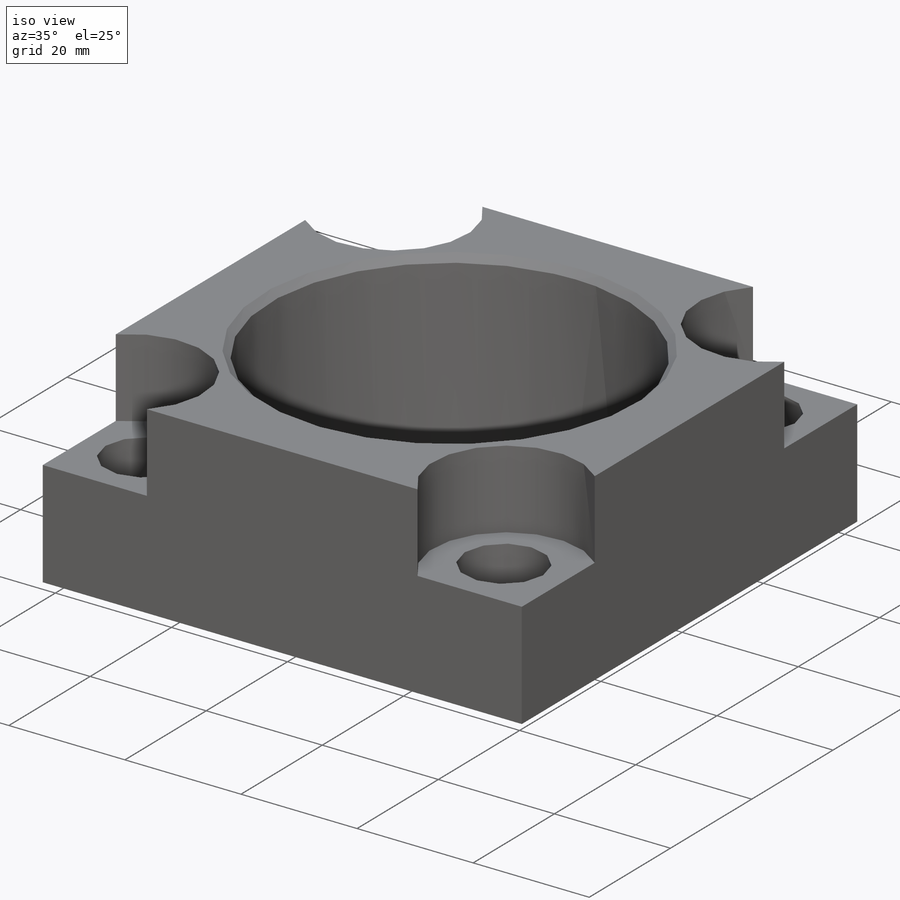
[diagram: iso view]
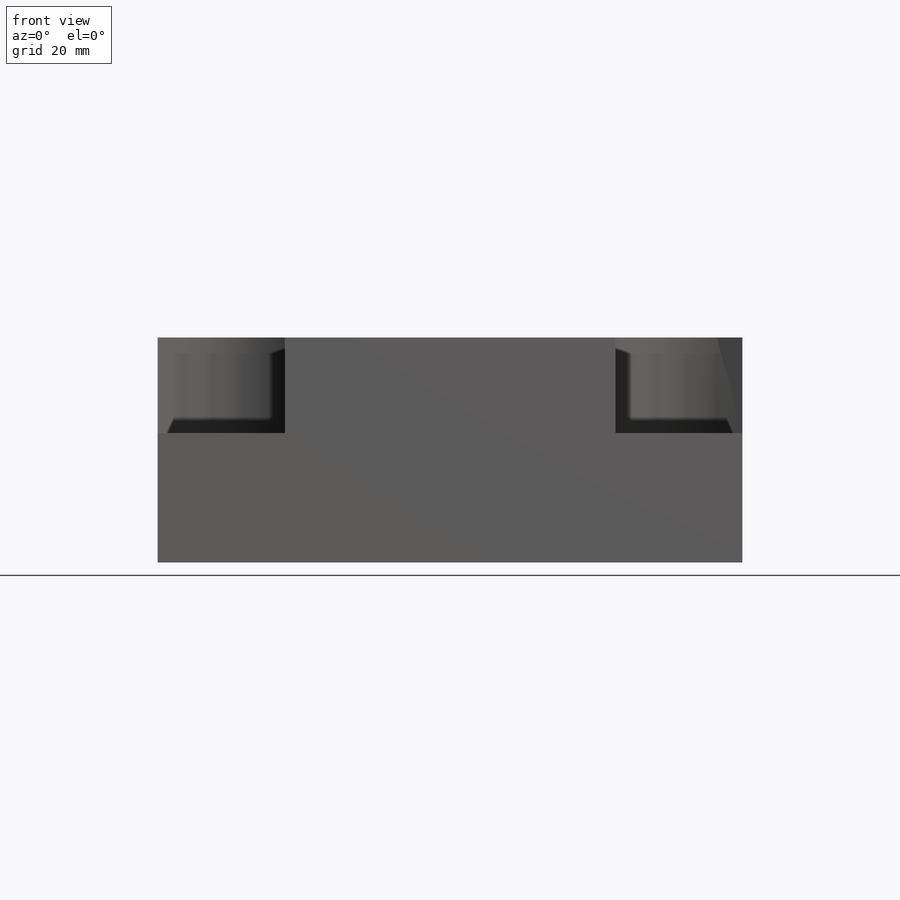
[diagram: front view]
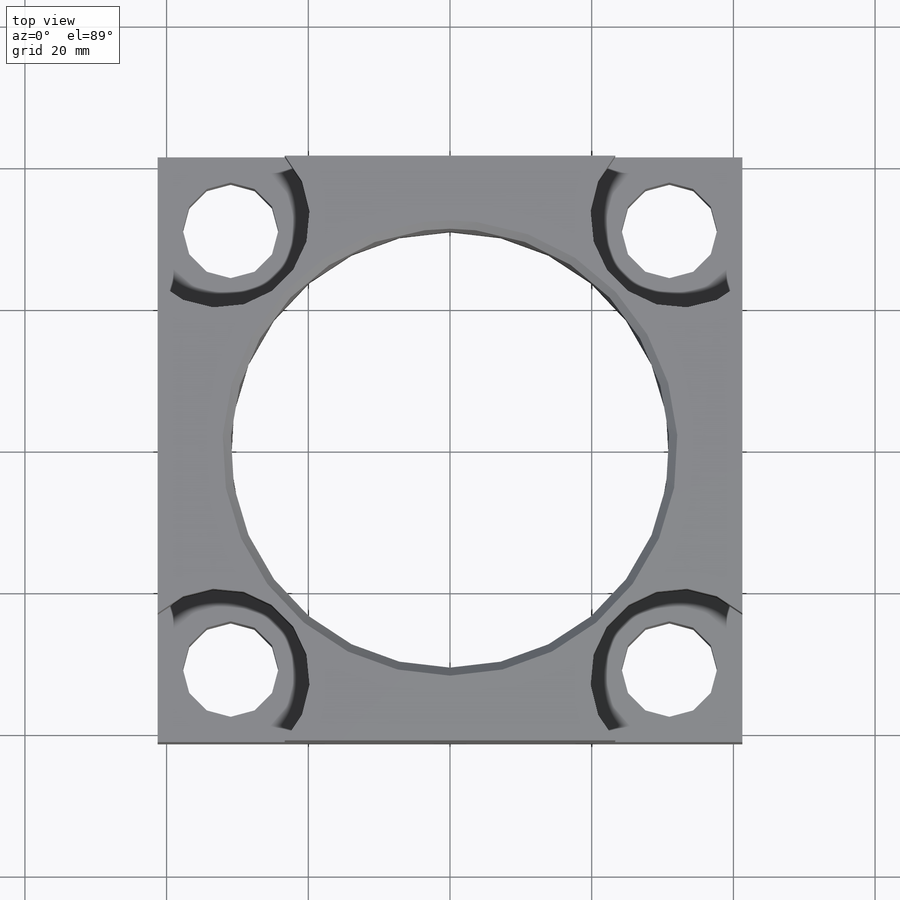
[diagram: top view]
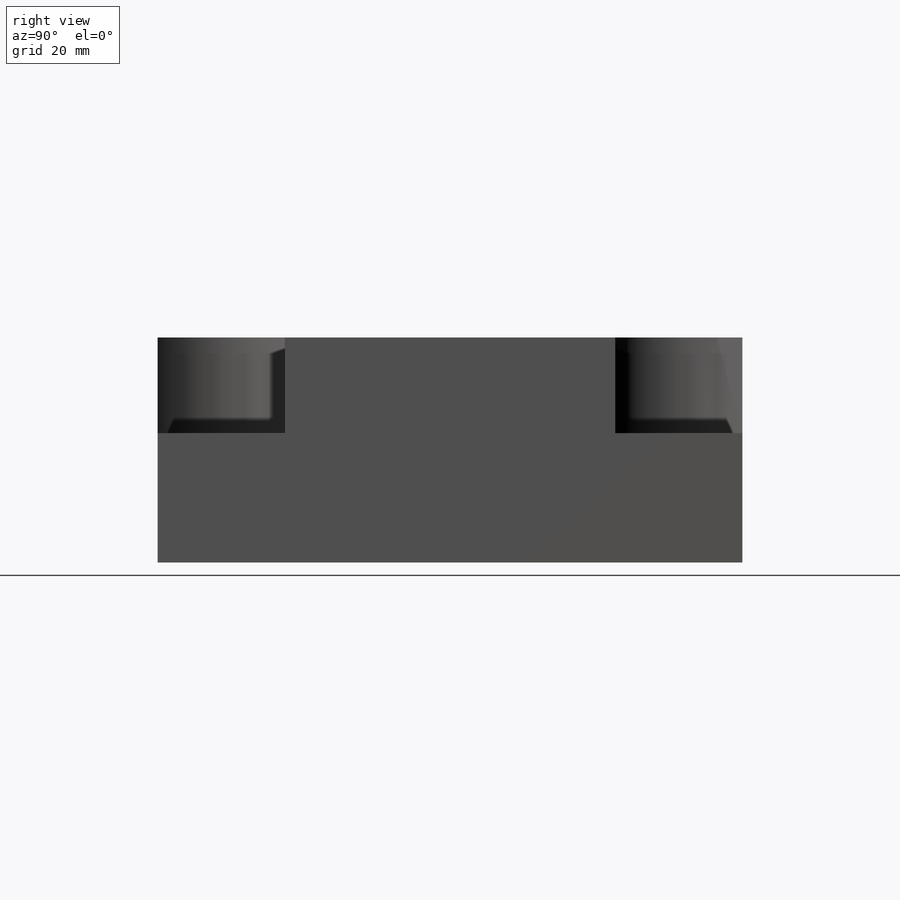
[diagram: right view]
SOLIDWORKS PART (.sldprt)
format: sldprt  version: not decoded by parser v0  size: 211,968 bytes
history: native  units: mm
features: sketch x5, material x1, extrude x1, cut_extrude x1, hole x1, cut_revolve x1 (+13 scaffold rows collapsed)
feature tree (23):
  scaffold x13  (default folders/planes/origin — collapsed)
  material  "Alloy Steel"
  sketch  "Sketch1"  dims[D3=61.9506mm D1=82.55mm D2=82.55mm]
  extrude  "Extrude1"  Depth=31.75mm
  sketch  "Sketch2"  dims[D1=12.7mm D2=32.512mm D3=32.512mm]
  cut_extrude  "Cut-Extrude1"  Depth=13.4874mm
  hole  "Hole1"  Diameter=13.4874mm Depth=18.2626mm
  sketch  "Sketch4"  dims[c1.D1=14.2875mm c1.D2=14.2875mm c2.D1=30.9626mm c2.D2=30.9626mm c2.D3=61.9252mm c2.D4=61.9252mm]
  sketch  "Sketch3"  dims[Diameter=13.4874mm Depth=18.2626mm]
  sketch  "Sketch5"  dims[c1.D1=~2.360965mm c2.D1=45.0deg c2.D2=64.262mm]
  cut_revolve  "Cut-Revolve1"  Angle=360deg
decode coverage: 9 of 9 modeling features carry decoded parameters
note: ~ marks probable driven/reference dimensions
note: suppression state not decoded; provenance and decode notes live in map.json
